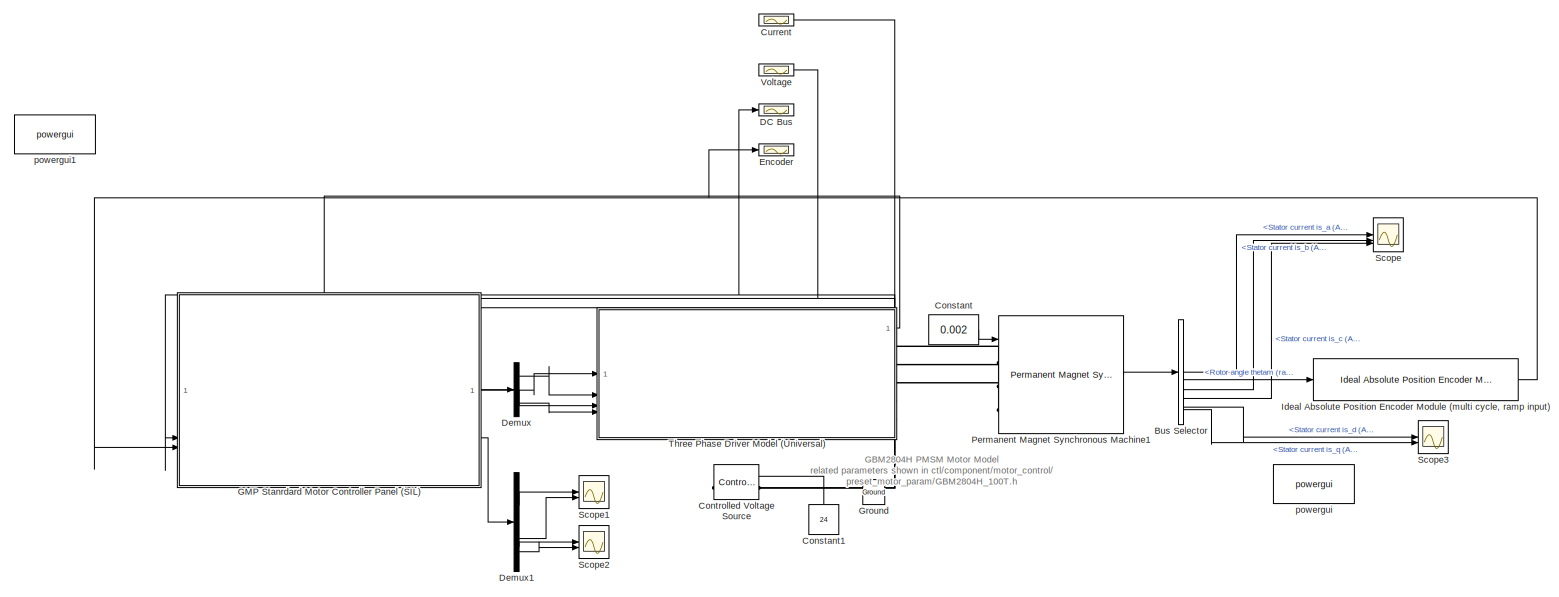
[diagram: root canvas - part 1/1, most of the canvas]
MODEL slx_19689d5f0157
KIND model
CONFIG AbsTol = auto
CONFIG EnableMultiTasking = off
CONFIG FixedStep = auto
CONFIG MaxStep = auto
CONFIG MinStep = auto
CONFIG RelTol = 1e-3
CONFIG SampleTimeConstraint = Unconstrained
CONFIG SolverName = VariableStepAuto
CONFIG StartTime = 0.0
CONFIG StopTime = 2
BLOCK [BusSelector] Bus Selector
  OutputSignals = Stator current is_a (A),Stator current is_b (A),Stator current is_c (A),Rotor angle thetam (rad),Stator current is_d (A),Stator current is_q (A)
BLOCK [Constant] Constant
  Value = 0.002
BLOCK [Constant] Constant1
  NameLocation = right
  Value = 24
BLOCK [Reference] Controlled Voltage Source  REF=spsControlledVoltageSourceLib/Controlled Voltage Source
  LibrarySourceBlock = sps_lib/Sources/Controlled Voltage Source
  NameLocation = right
  SourceBlock = spsControlledVoltageSourceLib/Controlled Voltage Source
  SourceType = Controlled Voltage Source
BLOCK [Scope] Current
  Floating = off
  NumInputPorts = 1
  ScopeSpecificationString = Simulink.scopes.TimeScopeBlockCfg('CurrentConfiguration', extmgr.ConfigurationSet(extmgr.Configuration('Core','General UI',true),extmgr.Configuration('Core','Source UI',true),extmgr.Configuration('Sources','WiredSimulink',true,'DataLoggingVariableName','ScopeData1'),extmgr.Configuration('Visuals','Time Domain',true,'SerializedDisplays',{struct('MinYLimReal','1657.00000','MaxYLimReal','2437.00000',...<+2002ch>
BLOCK [Scope] DC Bus
  Floating = off
  NumInputPorts = 1
  ScopeSpecificationString = Simulink.scopes.TimeScopeBlockCfg('CurrentConfiguration', extmgr.ConfigurationSet(extmgr.Configuration('Core','General UI',true),extmgr.Configuration('Core','Source UI',true),extmgr.Configuration('Sources','WiredSimulink',true,'DataLoggingVariableName','ScopeData3'),extmgr.Configuration('Visuals','Time Domain',true,'SerializedDisplays',{struct('MinYLimReal','-150.75','MaxYLimReal','1356.75','YLabe...<+1541ch>
BLOCK [Demux] Demux
  Outputs = 3
BLOCK [Demux] Demux1
BLOCK [Scope] Encoder
  Floating = off
  NumInputPorts = 1
  ScopeSpecificationString = Simulink.scopes.TimeScopeBlockCfg('CurrentConfiguration', extmgr.ConfigurationSet(extmgr.Configuration('Core','General UI',true),extmgr.Configuration('Core','Source UI',true),extmgr.Configuration('Sources','WiredSimulink',true,'DataLoggingVariableName','ScopeData4'),extmgr.Configuration('Visuals','Time Domain',true,'SerializedDisplays',{struct('MinYLimReal','-2047.875','MaxYLimReal','18430.875','Y...<+1603ch>
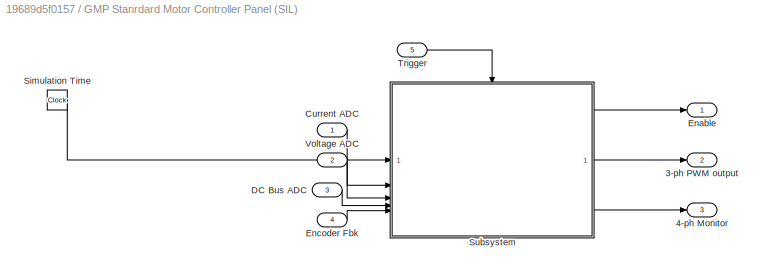
BLOCK [SubSystem] GMP Stanrdard Motor Controller Panel (SIL)
  PortSchema = {"entries":[{"content":{"sides":[{"content":{"connectorIds":["In1","In2","In3","In4"]},"type":"ConnectorPlacement.EquallySpacedRectSide","uuid":"92070e77-c4d8-4bd6-a20f-015d90d53703"},{"content":{"connectorIds":["Out1","Out2","Out3"],"side":"RIGHT"},"type":"ConnectorPlacement.EquallySpacedRectSide","uuid":"cd227558-01ea-4976-b12d-cc815f5c8239"},{"content":{"connectorIds":["In5"],"side":"TOP"},"typ...<+277ch>
BLOCK [Outport] GMP Stanrdard Motor Controller Panel (SIL)/3-ph PWM output
  Port = 2
BLOCK [Outport] GMP Stanrdard Motor Controller Panel (SIL)/4-ph Monitor
  Port = 3
BLOCK [Inport] GMP Stanrdard Motor Controller Panel (SIL)/Current ADC
BLOCK [Inport] GMP Stanrdard Motor Controller Panel (SIL)/DC Bus ADC
  Port = 3
BLOCK [Outport] GMP Stanrdard Motor Controller Panel (SIL)/Enable
BLOCK [Inport] GMP Stanrdard Motor Controller Panel (SIL)/Encoder Fbk
  Port = 4
BLOCK [Clock] GMP Stanrdard Motor Controller Panel (SIL)/Simulation Time
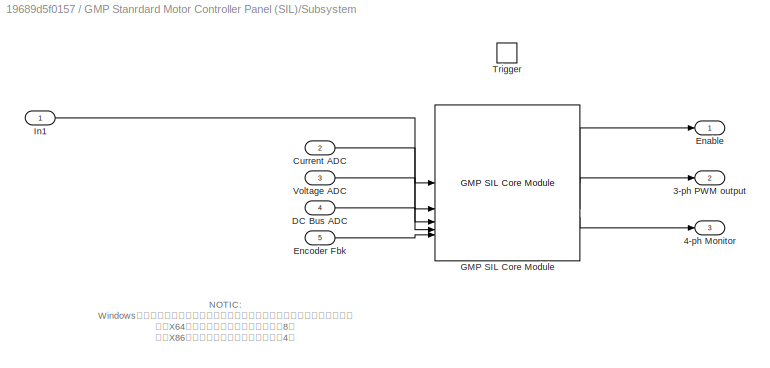
BLOCK [SubSystem] GMP Stanrdard Motor Controller Panel (SIL)/Subsystem
BLOCK [Outport] GMP Stanrdard Motor Controller Panel (SIL)/Subsystem/3-ph PWM output
  Port = 2
BLOCK [Outport] GMP Stanrdard Motor Controller Panel (SIL)/Subsystem/4-ph Monitor
  Port = 3
BLOCK [Inport] GMP Stanrdard Motor Controller Panel (SIL)/Subsystem/Current ADC
  Port = 2
BLOCK [Inport] GMP Stanrdard Motor Controller Panel (SIL)/Subsystem/DC Bus ADC
  Port = 4
BLOCK [Outport] GMP Stanrdard Motor Controller Panel (SIL)/Subsystem/Enable
BLOCK [Inport] GMP Stanrdard Motor Controller Panel (SIL)/Subsystem/Encoder Fbk
  Port = 5
BLOCK [Reference] GMP Stanrdard Motor Controller Panel (SIL)/Subsystem/GMP SIL Core Module  REF=gmp_sil_core_pack/GMP SIL Core Module
  SourceBlock = gmp_sil_core_pack/GMP SIL Core Module
  SourceType = GMP CTL SIL Core
BLOCK [Inport] GMP Stanrdard Motor Controller Panel (SIL)/Subsystem/In1
BLOCK [TriggerPort] GMP Stanrdard Motor Controller Panel (SIL)/Subsystem/Trigger
  PortDimensions = 1
  StatesWhenEnabling = held
  VariantControl = (inherit)
BLOCK [Inport] GMP Stanrdard Motor Controller Panel (SIL)/Subsystem/Voltage ADC
  Port = 3
BLOCK [Inport] GMP Stanrdard Motor Controller Panel (SIL)/Trigger
  Port = 5
BLOCK [Inport] GMP Stanrdard Motor Controller Panel (SIL)/Voltage ADC
  Port = 2
BLOCK [Reference] Ground  REF=spsGroundLib/Ground
  LibrarySourceBlock = sps_lib/Utilities/Ground
  NameLocation = right
  SourceBlock = spsGroundLib/Ground
  SourceType = Ground
BLOCK [Reference] Ideal Absolute Position Encoder Module (multi cycle, ramp input)  REF=peripheral_utilities/Ideal Absolute Position Encoder Module (multi cycle, ramp input)
  SourceBlock = peripheral_utilities/Ideal Absolute Position Encoder Module (multi cycle, ramp input)
BLOCK [Reference] Permanent Magnet Synchronous Machine1  REF=spsPermanentMagnetSynchronousMachineLib/Permanent Magnet
Synchronous Machine
  LibrarySourceBlock = sps_lib/Electrical Machines/Permanent Magnet\nSynchronous Machine
  SourceBlock = spsPermanentMagnetSynchronousMachineLib/Permanent Magnet\nSynchronous Machine
  SourceType = Permanent Magnet Synchronous Machine
BLOCK [Scope] Scope
  Floating = off
  NumInputPorts = 3
  ScopeSpecificationString = Simulink.scopes.TimeScopeBlockCfg('CurrentConfiguration', extmgr.ConfigurationSet(extmgr.Configuration('Core','General UI',true),extmgr.Configuration('Core','Source UI',true),extmgr.Configuration('Sources','WiredSimulink',true),extmgr.Configuration('Visuals','Time Domain',true,'SerializedDisplays',{struct('MinYLimReal','-3.22018','MaxYLimReal','3.22151','YLabelReal','','MinYLimMag','0.00000','MaxY...<+1923ch>
BLOCK [Scope] Scope1
  Floating = off
  NumInputPorts = 2
  ScopeSpecificationString = Simulink.scopes.TimeScopeBlockCfg('CurrentConfiguration', extmgr.ConfigurationSet(extmgr.Configuration('Core','General UI',true),extmgr.Configuration('Core','Source UI',true),extmgr.Configuration('Sources','WiredSimulink',true,'DataLoggingVariableName','ScopeData1'),extmgr.Configuration('Visuals','Time Domain',true,'SerializedDisplays',{struct('MinYLimReal','-0.12494','MaxYLimReal','1.12446','YLab...<+1989ch>
BLOCK [Scope] Scope2
  Floating = off
  NumInputPorts = 2
  ScopeSpecificationString = Simulink.scopes.TimeScopeBlockCfg('CurrentConfiguration', extmgr.ConfigurationSet(extmgr.Configuration('Core','General UI',true),extmgr.Configuration('Core','Source UI',true),extmgr.Configuration('Sources','WiredSimulink',true,'DataLoggingVariableName','ScopeData2'),extmgr.Configuration('Visuals','Time Domain',true,'SerializedDisplays',{struct('MinYLimReal','-0.30397','MaxYLimReal','0.56762','YLab...<+1540ch>
BLOCK [Scope] Scope3
  Floating = off
  NumInputPorts = 2
  ScopeSpecificationString = Simulink.scopes.TimeScopeBlockCfg('CurrentConfiguration', extmgr.ConfigurationSet(extmgr.Configuration('Core','General UI',true),extmgr.Configuration('Core','Source UI',true),extmgr.Configuration('Sources','WiredSimulink',true,'DataLoggingVariableName','ScopeData3'),extmgr.Configuration('Visuals','Time Domain',true,'SerializedDisplays',{struct('MinYLimReal','-0.23016','MaxYLimReal','0.92277','YLab...<+1547ch>
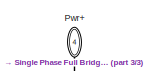
[diagram: Three Phase Driver Model (Universal) - part 1/3, top left region]
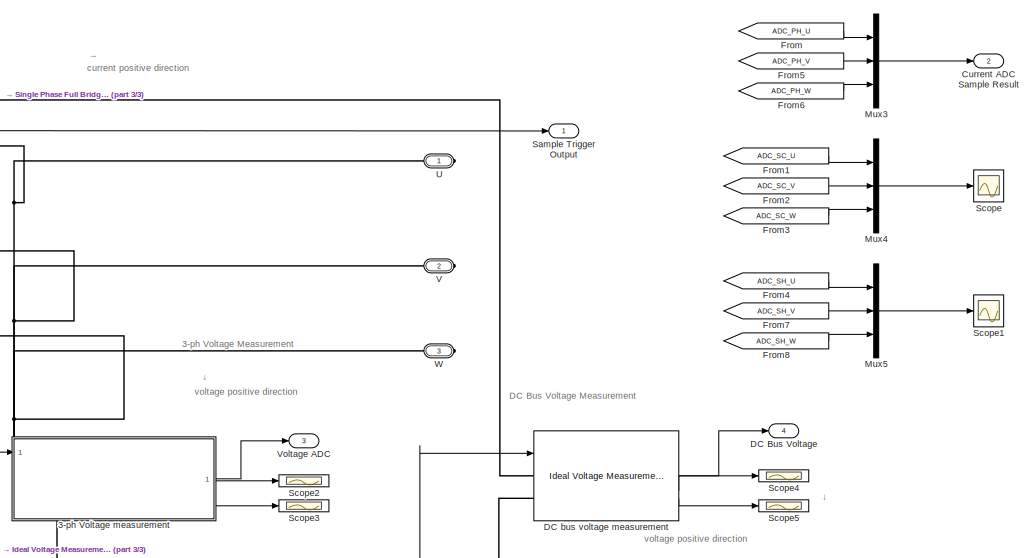
[diagram: Three Phase Driver Model (Universal) - part 2/3, middle right region]
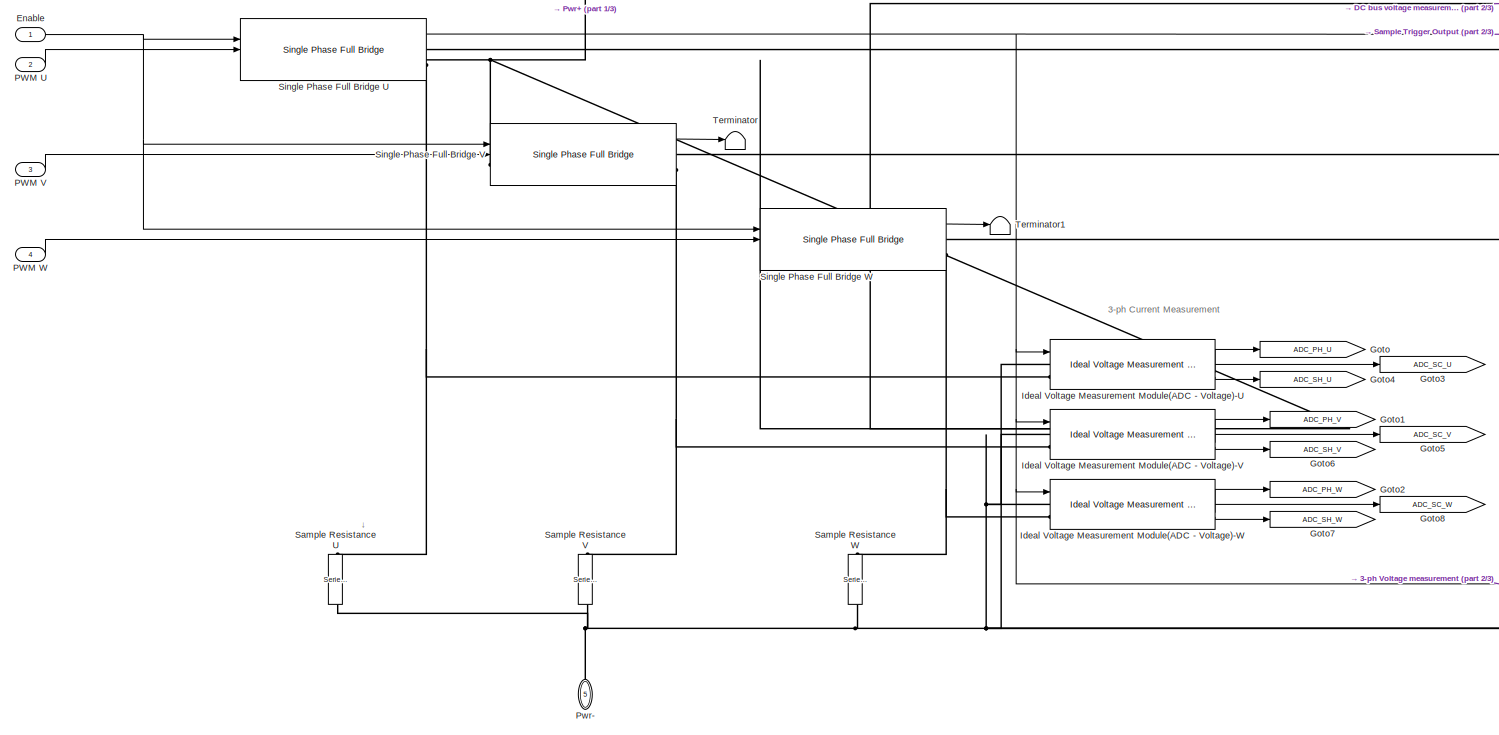
[diagram: Three Phase Driver Model (Universal) - part 3/3, left side, full height]
BLOCK [SubSystem] Three Phase Driver Model (Universal)
  AncestorBlock = peripheral_utilities/Three Phase Driver Model (Universal)
  PortSchema = {"entries":[{"content":{"sides":[{"content":{"connectorIds":["In1","In2","In3","In4"]},"type":"ConnectorPlacement.EquallySpacedRectSide","uuid":"3f4c86ad-0582-4f47-8583-a8af9a7f9adc"},{"content":{"connectorIds":["Out1","RConn1","RConn2","RConn3"],"side":"RIGHT"},"type":"ConnectorPlacement.EquallySpacedRectSide","uuid":"ae91f325-3014-4188-9063-296f4d5623fa"},{"content":{"connectorIds":["Out2","Out3...<+466ch>
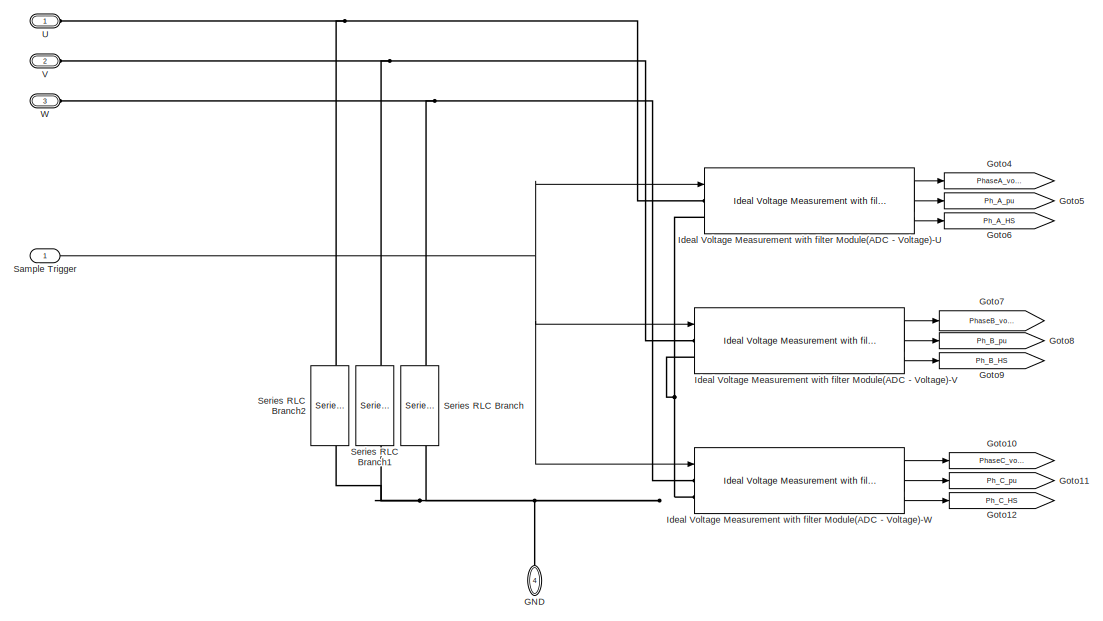
[diagram: Three Phase Driver Model (Universal)/3-ph Voltage measurement - part 1/2, center side, full height]
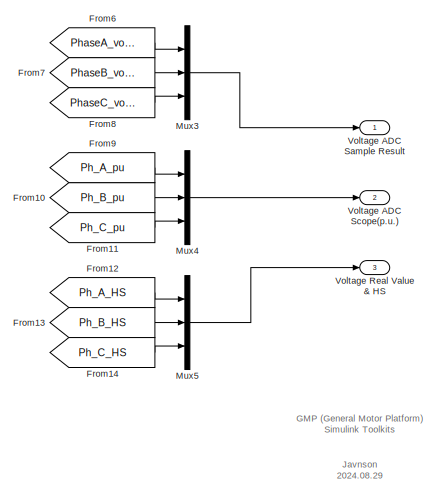
[diagram: Three Phase Driver Model (Universal)/3-ph Voltage measurement - part 2/2, middle right region]
BLOCK [SubSystem] Three Phase Driver Model (Universal)/3-ph Voltage measurement
  AncestorBlock = peripheral_utilities/Three Phases Voltage (ph-gnd) Measurement with Filter
  PortSchema = {"entries":[{"content":{"sides":[{"content":{"connectorIds":["In1"]},"type":"ConnectorPlacement.EquallySpacedRectSide","uuid":"ae4f4612-c092-4fa0-8a43-5c9e823110e3"},{"content":{"connectorIds":["Out1","Out2","Out3"],"side":"RIGHT"},"type":"ConnectorPlacement.EquallySpacedRectSide","uuid":"6db15ef0-d33a-4775-b4e6-14a566796673"},{"content":{"connectorIds":["LConn1","LConn2","LConn3","LConn4"],"side"...<+289ch>
BLOCK [From] Three Phase Driver Model (Universal)/3-ph Voltage measurement/From10
  GotoTag = Ph_B_pu
BLOCK [From] Three Phase Driver Model (Universal)/3-ph Voltage measurement/From11
  GotoTag = Ph_C_pu
BLOCK [From] Three Phase Driver Model (Universal)/3-ph Voltage measurement/From12
  GotoTag = Ph_A_HS
BLOCK [From] Three Phase Driver Model (Universal)/3-ph Voltage measurement/From13
  GotoTag = Ph_B_HS
BLOCK [From] Three Phase Driver Model (Universal)/3-ph Voltage measurement/From14
  GotoTag = Ph_C_HS
BLOCK [From] Three Phase Driver Model (Universal)/3-ph Voltage measurement/From6
  GotoTag = PhaseA_voltage
BLOCK [From] Three Phase Driver Model (Universal)/3-ph Voltage measurement/From7
  GotoTag = PhaseB_voltage
BLOCK [From] Three Phase Driver Model (Universal)/3-ph Voltage measurement/From8
  GotoTag = PhaseC_voltage
BLOCK [From] Three Phase Driver Model (Universal)/3-ph Voltage measurement/From9
  GotoTag = Ph_A_pu
BLOCK [PMIOPort] Three Phase Driver Model (Universal)/3-ph Voltage measurement/GND
  NameLocation = right
  Port = 4
  Side = Left
BLOCK [Goto] Three Phase Driver Model (Universal)/3-ph Voltage measurement/Goto10
  GotoTag = PhaseC_voltage
BLOCK [Goto] Three Phase Driver Model (Universal)/3-ph Voltage measurement/Goto11
  GotoTag = Ph_C_pu
BLOCK [Goto] Three Phase Driver Model (Universal)/3-ph Voltage measurement/Goto12
  GotoTag = Ph_C_HS
BLOCK [Goto] Three Phase Driver Model (Universal)/3-ph Voltage measurement/Goto4
  GotoTag = PhaseA_voltage
BLOCK [Goto] Three Phase Driver Model (Universal)/3-ph Voltage measurement/Goto5
  GotoTag = Ph_A_pu
BLOCK [Goto] Three Phase Driver Model (Universal)/3-ph Voltage measurement/Goto6
  GotoTag = Ph_A_HS
BLOCK [Goto] Three Phase Driver Model (Universal)/3-ph Voltage measurement/Goto7
  GotoTag = PhaseB_voltage
BLOCK [Goto] Three Phase Driver Model (Universal)/3-ph Voltage measurement/Goto8
  GotoTag = Ph_B_pu
BLOCK [Goto] Three Phase Driver Model (Universal)/3-ph Voltage measurement/Goto9
  GotoTag = Ph_B_HS
BLOCK [Reference] Three Phase Driver Model (Universal)/3-ph Voltage measurement/Ideal Voltage Measurement with filter Module(ADC - Voltage)-U  REF=peripheral_utilities/Ideal Voltage Measurement with filter Module(ADC - Voltage)
  SourceBlock = peripheral_utilities/Ideal Voltage Measurement with filter Module(ADC - Voltage)
BLOCK [Reference] Three Phase Driver Model (Universal)/3-ph Voltage measurement/Ideal Voltage Measurement with filter Module(ADC - Voltage)-V  REF=peripheral_utilities/Ideal Voltage Measurement with filter Module(ADC - Voltage)
  SourceBlock = peripheral_utilities/Ideal Voltage Measurement with filter Module(ADC - Voltage)
BLOCK [Reference] Three Phase Driver Model (Universal)/3-ph Voltage measurement/Ideal Voltage Measurement with filter Module(ADC - Voltage)-W  REF=peripheral_utilities/Ideal Voltage Measurement with filter Module(ADC - Voltage)
  SourceBlock = peripheral_utilities/Ideal Voltage Measurement with filter Module(ADC - Voltage)
BLOCK [Mux] Three Phase Driver Model (Universal)/3-ph Voltage measurement/Mux3
  DisplayOption = bar
  Inputs = 3
BLOCK [Mux] Three Phase Driver Model (Universal)/3-ph Voltage measurement/Mux4
  DisplayOption = bar
  Inputs = 3
BLOCK [Mux] Three Phase Driver Model (Universal)/3-ph Voltage measurement/Mux5
  DisplayOption = bar
  Inputs = 3
BLOCK [Inport] Three Phase Driver Model (Universal)/3-ph Voltage measurement/Sample Trigger
BLOCK [Reference] Three Phase Driver Model (Universal)/3-ph Voltage measurement/Series RLC Branch  REF=spsSeriesRLCBranchLib/Series RLC Branch
  LibrarySourceBlock = sps_lib/Passives/Series RLC Branch
  NameLocation = left
  SourceBlock = spsSeriesRLCBranchLib/Series RLC Branch
  SourceType = Series RLC Branch
BLOCK [Reference] Three Phase Driver Model (Universal)/3-ph Voltage measurement/Series RLC Branch1  REF=spsSeriesRLCBranchLib/Series RLC Branch
  LibrarySourceBlock = sps_lib/Passives/Series RLC Branch
  NameLocation = left
  SourceBlock = spsSeriesRLCBranchLib/Series RLC Branch
  SourceType = Series RLC Branch
BLOCK [Reference] Three Phase Driver Model (Universal)/3-ph Voltage measurement/Series RLC Branch2  REF=spsSeriesRLCBranchLib/Series RLC Branch
  LibrarySourceBlock = sps_lib/Passives/Series RLC Branch
  NameLocation = left
  SourceBlock = spsSeriesRLCBranchLib/Series RLC Branch
  SourceType = Series RLC Branch
BLOCK [PMIOPort] Three Phase Driver Model (Universal)/3-ph Voltage measurement/U
  Side = Left
BLOCK [PMIOPort] Three Phase Driver Model (Universal)/3-ph Voltage measurement/V
  Port = 2
  Side = Left
BLOCK [Outport] Three Phase Driver Model (Universal)/3-ph Voltage measurement/Voltage ADC Sample Result
BLOCK [Outport] Three Phase Driver Model (Universal)/3-ph Voltage measurement/Voltage ADC Scope(p.u.)
  Port = 2
BLOCK [Outport] Three Phase Driver Model (Universal)/3-ph Voltage measurement/Voltage Real Value & HS
  Port = 3
BLOCK [PMIOPort] Three Phase Driver Model (Universal)/3-ph Voltage measurement/W
  Port = 3
  Side = Left
BLOCK [Outport] Three Phase Driver Model (Universal)/Current ADC Sample Result
  Port = 2
BLOCK [Outport] Three Phase Driver Model (Universal)/DC Bus Voltage
  Port = 4
BLOCK [Reference] Three Phase Driver Model (Universal)/DC bus voltage measurement  REF=peripheral_utilities/Ideal Voltage Measurement Module(ADC - Voltage)
  SourceBlock = peripheral_utilities/Ideal Voltage Measurement Module(ADC - Voltage)
BLOCK [Inport] Three Phase Driver Model (Universal)/Enable
BLOCK [From] Three Phase Driver Model (Universal)/From
  GotoTag = ADC_PH_U
BLOCK [From] Three Phase Driver Model (Universal)/From1
  GotoTag = ADC_SC_U
BLOCK [From] Three Phase Driver Model (Universal)/From2
  GotoTag = ADC_SC_V
BLOCK [From] Three Phase Driver Model (Universal)/From3
  GotoTag = ADC_SC_W
BLOCK [From] Three Phase Driver Model (Universal)/From4
  GotoTag = ADC_SH_U
BLOCK [From] Three Phase Driver Model (Universal)/From5
  GotoTag = ADC_PH_V
BLOCK [From] Three Phase Driver Model (Universal)/From6
  GotoTag = ADC_PH_W
BLOCK [From] Three Phase Driver Model (Universal)/From7
  GotoTag = ADC_SH_V
BLOCK [From] Three Phase Driver Model (Universal)/From8
  GotoTag = ADC_SH_W
BLOCK [Goto] Three Phase Driver Model (Universal)/Goto
  GotoTag = ADC_PH_U
BLOCK [Goto] Three Phase Driver Model (Universal)/Goto1
  GotoTag = ADC_PH_V
BLOCK [Goto] Three Phase Driver Model (Universal)/Goto2
  GotoTag = ADC_PH_W
BLOCK [Goto] Three Phase Driver Model (Universal)/Goto3
  GotoTag = ADC_SC_U
BLOCK [Goto] Three Phase Driver Model (Universal)/Goto4
  GotoTag = ADC_SH_U
BLOCK [Goto] Three Phase Driver Model (Universal)/Goto5
  GotoTag = ADC_SC_V
BLOCK [Goto] Three Phase Driver Model (Universal)/Goto6
  GotoTag = ADC_SH_V
BLOCK [Goto] Three Phase Driver Model (Universal)/Goto7
  GotoTag = ADC_SH_W
BLOCK [Goto] Three Phase Driver Model (Universal)/Goto8
  GotoTag = ADC_SC_W
BLOCK [Reference] Three Phase Driver Model (Universal)/Ideal Voltage Measurement Module(ADC - Voltage)-U  REF=peripheral_utilities/Ideal Voltage Measurement Module(ADC - Voltage)
  SourceBlock = peripheral_utilities/Ideal Voltage Measurement Module(ADC - Voltage)
BLOCK [Reference] Three Phase Driver Model (Universal)/Ideal Voltage Measurement Module(ADC - Voltage)-V  REF=peripheral_utilities/Ideal Voltage Measurement Module(ADC - Voltage)
  SourceBlock = peripheral_utilities/Ideal Voltage Measurement Module(ADC - Voltage)
BLOCK [Reference] Three Phase Driver Model (Universal)/Ideal Voltage Measurement Module(ADC - Voltage)-W  REF=peripheral_utilities/Ideal Voltage Measurement Module(ADC - Voltage)
  SourceBlock = peripheral_utilities/Ideal Voltage Measurement Module(ADC - Voltage)
BLOCK [Mux] Three Phase Driver Model (Universal)/Mux3
  DisplayOption = bar
  Inputs = 3
BLOCK [Mux] Three Phase Driver Model (Universal)/Mux4
  DisplayOption = bar
  Inputs = 3
BLOCK [Mux] Three Phase Driver Model (Universal)/Mux5
  DisplayOption = bar
  Inputs = 3
BLOCK [Inport] Three Phase Driver Model (Universal)/PWM U
  Port = 2
BLOCK [Inport] Three Phase Driver Model (Universal)/PWM V
  Port = 3
BLOCK [Inport] Three Phase Driver Model (Universal)/PWM W
  Port = 4
BLOCK [PMIOPort] Three Phase Driver Model (Universal)/Pwr+
  NameLocation = left
  Port = 4
  Side = Right
BLOCK [PMIOPort] Three Phase Driver Model (Universal)/Pwr-
  NameLocation = right
  Port = 5
  Side = Right
BLOCK [Reference] Three Phase Driver Model (Universal)/Sample Resistance U  REF=spsSeriesRLCBranchLib/Series RLC Branch
  NameLocation = left
  SourceBlock = spsSeriesRLCBranchLib/Series RLC Branch
  SourceType = Series RLC Branch
BLOCK [Reference] Three Phase Driver Model (Universal)/Sample Resistance V  REF=spsSeriesRLCBranchLib/Series RLC Branch
  NameLocation = left
  SourceBlock = spsSeriesRLCBranchLib/Series RLC Branch
  SourceType = Series RLC Branch
BLOCK [Reference] Three Phase Driver Model (Universal)/Sample Resistance W  REF=spsSeriesRLCBranchLib/Series RLC Branch
  NameLocation = left
  SourceBlock = spsSeriesRLCBranchLib/Series RLC Branch
  SourceType = Series RLC Branch
BLOCK [Outport] Three Phase Driver Model (Universal)/Sample Trigger Output
BLOCK [Scope] Three Phase Driver Model (Universal)/Scope
  Floating = off
  NumInputPorts = 1
  ScopeSpecificationString = Simulink.scopes.TimeScopeBlockCfg('CurrentConfiguration', extmgr.ConfigurationSet(extmgr.Configuration('Core','General UI',true),extmgr.Configuration('Core','Source UI',true),extmgr.Configuration('Sources','WiredSimulink',true),extmgr.Configuration('Visuals','Time Domain',true,'SerializedDisplays',{struct('MinYLimReal','0.44616','MaxYLimReal','0.5534','YLabelReal','','MinYLimMag','0.44616','MaxYLi...<+1635ch>
BLOCK [Scope] Three Phase Driver Model (Universal)/Scope1
  Floating = off
  NumInputPorts = 1
  ScopeSpecificationString = Simulink.scopes.TimeScopeBlockCfg('CurrentConfiguration', extmgr.ConfigurationSet(extmgr.Configuration('Core','General UI',true),extmgr.Configuration('Core','Source UI',true),extmgr.Configuration('Sources','WiredSimulink',true,'DataLoggingVariableName','ScopeData1'),extmgr.Configuration('Visuals','Time Domain',true,'SerializedDisplays',{struct('MinYLimReal','-0.00785','MaxYLimReal','0.00755','YLab...<+1705ch>
BLOCK [Scope] Three Phase Driver Model (Universal)/Scope2
  Floating = off
  NumInputPorts = 1
  ScopeSpecificationString = Simulink.scopes.TimeScopeBlockCfg('CurrentConfiguration', extmgr.ConfigurationSet(extmgr.Configuration('Core','General UI',true),extmgr.Configuration('Core','Source UI',true),extmgr.Configuration('Sources','WiredSimulink',true,'DataLoggingVariableName','ScopeData2'),extmgr.Configuration('Visuals','Time Domain',true,'SerializedDisplays',{struct('MinYLimReal','-0.0199','MaxYLimReal','0.17912','YLabe...<+1582ch>
BLOCK [Scope] Three Phase Driver Model (Universal)/Scope3
  Floating = off
  NumInputPorts = 1
  ScopeSpecificationString = Simulink.scopes.TimeScopeBlockCfg('CurrentConfiguration', extmgr.ConfigurationSet(extmgr.Configuration('Core','General UI',true),extmgr.Configuration('Core','Source UI',true),extmgr.Configuration('Sources','WiredSimulink',true,'DataLoggingVariableName','ScopeData3'),extmgr.Configuration('Visuals','Time Domain',true,'SerializedDisplays',{struct('MinYLimReal','-2.45812','MaxYLimReal','14.44693','YLa...<+1681ch>
BLOCK [Scope] Three Phase Driver Model (Universal)/Scope4
  Floating = off
  NumInputPorts = 1
  ScopeSpecificationString = Simulink.scopes.TimeScopeBlockCfg('CurrentConfiguration', extmgr.ConfigurationSet(extmgr.Configuration('Core','General UI',true),extmgr.Configuration('Core','Source UI',true),extmgr.Configuration('Sources','WiredSimulink',true,'DataLoggingVariableName','ScopeData4'),extmgr.Configuration('Visuals','Time Domain',true),extmgr.Configuration('Tools','Plot Navigation',true),extmgr.Configuration('Tools',...<+40ch>
BLOCK [Scope] Three Phase Driver Model (Universal)/Scope5
  Floating = off
  NumInputPorts = 1
  ScopeSpecificationString = Simulink.scopes.TimeScopeBlockCfg('CurrentConfiguration', extmgr.ConfigurationSet(extmgr.Configuration('Core','General UI',true),extmgr.Configuration('Core','Source UI',true),extmgr.Configuration('Sources','WiredSimulink',true,'DataLoggingVariableName','ScopeData5'),extmgr.Configuration('Visuals','Time Domain',true,'SerializedDisplays',{struct('MinYLimReal','-3.00000','MaxYLimReal','27.00000','YLa...<+1588ch>
BLOCK [Reference] Three Phase Driver Model (Universal)/Single Phase Full Bridge U  REF=peripheral_utilities/Single Phase Full Bridge
  SourceBlock = peripheral_utilities/Single Phase Full Bridge
BLOCK [Reference] Three Phase Driver Model (Universal)/Single Phase Full Bridge V  REF=peripheral_utilities/Single Phase Full Bridge
  SourceBlock = peripheral_utilities/Single Phase Full Bridge
BLOCK [Reference] Three Phase Driver Model (Universal)/Single Phase Full Bridge W  REF=peripheral_utilities/Single Phase Full Bridge
  SourceBlock = peripheral_utilities/Single Phase Full Bridge
BLOCK [Terminator] Three Phase Driver Model (Universal)/Terminator
BLOCK [Terminator] Three Phase Driver Model (Universal)/Terminator1
BLOCK [PMIOPort] Three Phase Driver Model (Universal)/U
  Side = Right
BLOCK [PMIOPort] Three Phase Driver Model (Universal)/V
  Port = 2
  Side = Right
BLOCK [Outport] Three Phase Driver Model (Universal)/Voltage ADC
  Port = 3
BLOCK [PMIOPort] Three Phase Driver Model (Universal)/W
  Port = 3
  Side = Right
BLOCK [Scope] Voltage
  Floating = off
  NumInputPorts = 1
  ScopeSpecificationString = Simulink.scopes.TimeScopeBlockCfg('CurrentConfiguration', extmgr.ConfigurationSet(extmgr.Configuration('Core','General UI',true),extmgr.Configuration('Core','Source UI',true),extmgr.Configuration('Sources','WiredSimulink',true,'DataLoggingVariableName','ScopeData2'),extmgr.Configuration('Visuals','Time Domain',true,'SerializedDisplays',{struct('MinYLimReal','-57.25','MaxYLimReal','515.25','YLabelR...<+1667ch>
BLOCK [Reference] powergui  REF=spspowerguiLib/powergui
  LibrarySourceBlock = sps_lib/powergui
  Priority = 1
  SourceBlock = spspowerguiLib/powergui
  SourceType = PSB option menu block
BLOCK [Reference] powergui1  REF=spspowerguiLib/powergui
  LibrarySourceBlock = sps_lib/powergui
  Priority = 1
  SourceBlock = spspowerguiLib/powergui
  SourceType = PSB option menu block
ANNOTATION (root): GBM2804H PMSM Motor Model related parameters shown in ctl/component/motor_control/ preset_motor_param/GBM2804H_100T.h
ANNOTATION GMP Stanrdard Motor Controller Panel (SIL)/Subsystem: NOTIC: Windows平台下必须设置为正确的内存对齐方式，否则会导致收到的数据乱码！ 对于X64的编译方式，默认的内存对齐为8； 对于X86的编译方式，默认的内存对齐为4。
ANNOTATION Three Phase Driver Model (Universal): 3-ph Current Measurement
ANNOTATION Three Phase Driver Model (Universal): 3-ph Voltage Measurement
ANNOTATION Three Phase Driver Model (Universal): →
ANNOTATION Three Phase Driver Model (Universal): ↓
ANNOTATION Three Phase Driver Model (Universal): DC Bus Voltage Measurement
ANNOTATION Three Phase Driver Model (Universal): current positive direction
ANNOTATION Three Phase Driver Model (Universal): voltage positive direction
ANNOTATION Three Phase Driver Model (Universal)/3-ph Voltage measurement: GMP (General Motor Platform) Simulink Toolkits
ANNOTATION Three Phase Driver Model (Universal)/3-ph Voltage measurement: Javnson 2024.08.29
LINE Bus Selector:1 -> Scope:1
LINE Bus Selector:2 -> Scope:2
LINE Bus Selector:3 -> Scope:3
LINE Bus Selector:4 -> Ideal Absolute Position Encoder Module (multi cycle, ramp input):1
LINE Bus Selector:5 -> Scope3:1
LINE Bus Selector:6 -> Scope3:2
LINE Constant1:1 -> Controlled Voltage Source:1
LINE Constant:1 -> Permanent Magnet Synchronous Machine1:1
LINE Demux1:1 -> Scope1:1
LINE Demux1:2 -> Scope1:2
LINE Demux1:3 -> Scope2:1
LINE Demux1:4 -> Scope2:2
LINE Demux:1 -> Three Phase Driver Model (Universal):2
LINE Demux:2 -> Three Phase Driver Model (Universal):3
LINE Demux:3 -> Three Phase Driver Model (Universal):4
LINE GMP Stanrdard Motor Controller Panel (SIL)/Current ADC:1 -> GMP Stanrdard Motor Controller Panel (SIL)/Subsystem:2
LINE GMP Stanrdard Motor Controller Panel (SIL)/DC Bus ADC:1 -> GMP Stanrdard Motor Controller Panel (SIL)/Subsystem:4
LINE GMP Stanrdard Motor Controller Panel (SIL)/Encoder Fbk:1 -> GMP Stanrdard Motor Controller Panel (SIL)/Subsystem:5
LINE GMP Stanrdard Motor Controller Panel (SIL)/Simulation Time:1 -> GMP Stanrdard Motor Controller Panel (SIL)/Subsystem:1
LINE GMP Stanrdard Motor Controller Panel (SIL)/Subsystem/Current ADC:1 -> GMP Stanrdard Motor Controller Panel (SIL)/Subsystem/GMP SIL Core Module:2
LINE GMP Stanrdard Motor Controller Panel (SIL)/Subsystem/DC Bus ADC:1 -> GMP Stanrdard Motor Controller Panel (SIL)/Subsystem/GMP SIL Core Module:4
LINE GMP Stanrdard Motor Controller Panel (SIL)/Subsystem/Encoder Fbk:1 -> GMP Stanrdard Motor Controller Panel (SIL)/Subsystem/GMP SIL Core Module:5
LINE GMP Stanrdard Motor Controller Panel (SIL)/Subsystem/GMP SIL Core Module:1 -> GMP Stanrdard Motor Controller Panel (SIL)/Subsystem/Enable:1
LINE GMP Stanrdard Motor Controller Panel (SIL)/Subsystem/GMP SIL Core Module:2 -> GMP Stanrdard Motor Controller Panel (SIL)/Subsystem/3-ph PWM output:1
LINE GMP Stanrdard Motor Controller Panel (SIL)/Subsystem/GMP SIL Core Module:3 -> GMP Stanrdard Motor Controller Panel (SIL)/Subsystem/4-ph Monitor:1
LINE GMP Stanrdard Motor Controller Panel (SIL)/Subsystem/In1:1 -> GMP Stanrdard Motor Controller Panel (SIL)/Subsystem/GMP SIL Core Module:1
LINE GMP Stanrdard Motor Controller Panel (SIL)/Subsystem/Voltage ADC:1 -> GMP Stanrdard Motor Controller Panel (SIL)/Subsystem/GMP SIL Core Module:3
LINE GMP Stanrdard Motor Controller Panel (SIL)/Subsystem:1 -> GMP Stanrdard Motor Controller Panel (SIL)/Enable:1
LINE GMP Stanrdard Motor Controller Panel (SIL)/Subsystem:2 -> GMP Stanrdard Motor Controller Panel (SIL)/3-ph PWM output:1
LINE GMP Stanrdard Motor Controller Panel (SIL)/Subsystem:3 -> GMP Stanrdard Motor Controller Panel (SIL)/4-ph Monitor:1
LINE GMP Stanrdard Motor Controller Panel (SIL)/Trigger:1 -> GMP Stanrdard Motor Controller Panel (SIL)/Subsystem:trigger
LINE GMP Stanrdard Motor Controller Panel (SIL)/Voltage ADC:1 -> GMP Stanrdard Motor Controller Panel (SIL)/Subsystem:3
LINE GMP Stanrdard Motor Controller Panel (SIL):1 -> Three Phase Driver Model (Universal):1
LINE GMP Stanrdard Motor Controller Panel (SIL):2 -> Demux:1
LINE GMP Stanrdard Motor Controller Panel (SIL):3 -> Demux1:1
NET Ideal Absolute Position Encoder Module (multi cycle, ramp input):1 -> Encoder:1, GMP Stanrdard Motor Controller Panel (SIL):4
LINE Permanent Magnet Synchronous Machine1:1 -> Bus Selector:1
LINE Three Phase Driver Model (Universal):1 -> GMP Stanrdard Motor Controller Panel (SIL):5
NET Three Phase Driver Model (Universal):2 -> Current:1, GMP Stanrdard Motor Controller Panel (SIL):1
NET Three Phase Driver Model (Universal):3 -> GMP Stanrdard Motor Controller Panel (SIL):2, Voltage:1
NET Three Phase Driver Model (Universal):4 -> DC Bus:1, GMP Stanrdard Motor Controller Panel (SIL):3
PLINE Controlled Voltage Source:LConn1 -- Three Phase Driver Model (Universal):RConn5
PLINE Controlled Voltage Source:RConn1 -- Three Phase Driver Model (Universal):RConn4
PLINE Permanent Magnet Synchronous Machine1:LConn1 -- Three Phase Driver Model (Universal):RConn1
PLINE Permanent Magnet Synchronous Machine1:LConn2 -- Three Phase Driver Model (Universal):RConn2
PLINE Permanent Magnet Synchronous Machine1:LConn3 -- Three Phase Driver Model (Universal):RConn3
note: NET lines group one-source signal fan-out (src -> all destinations, sorted); 1:1 wires keep LINE
